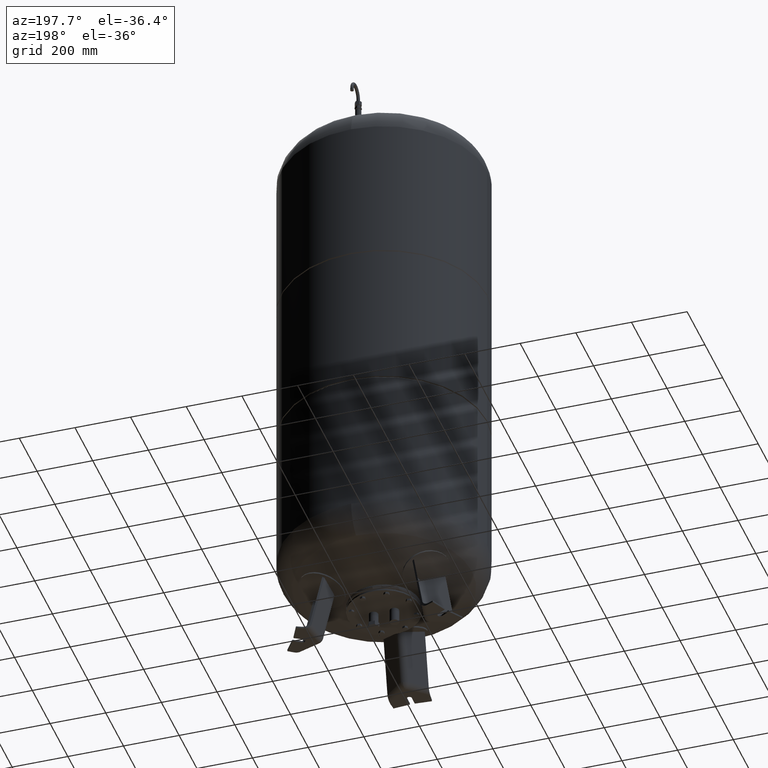
[diagram: clean part render]
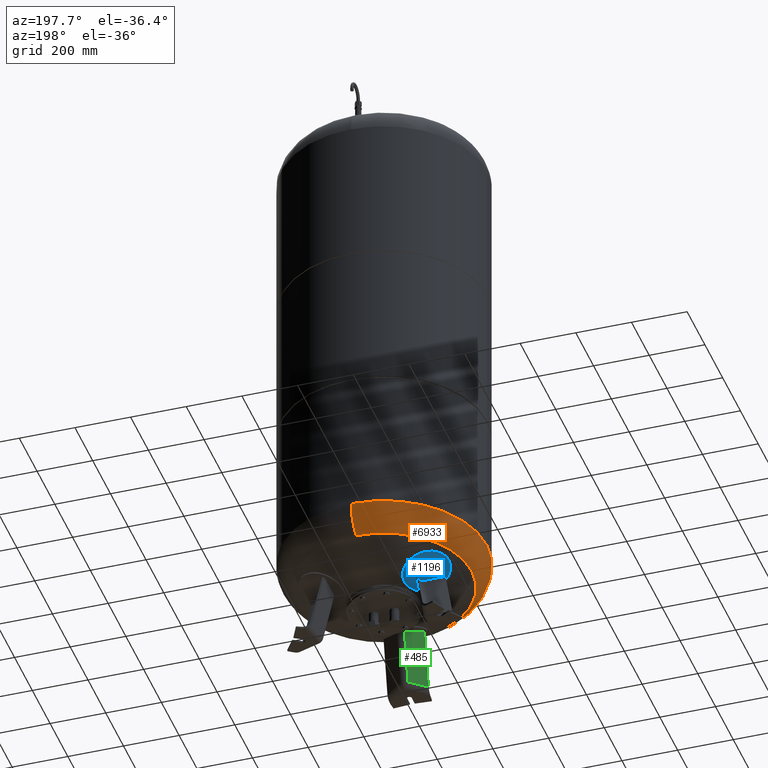
[diagram: same view with three faces highlighted in distinct colors, each labeled with its STEP entity id]
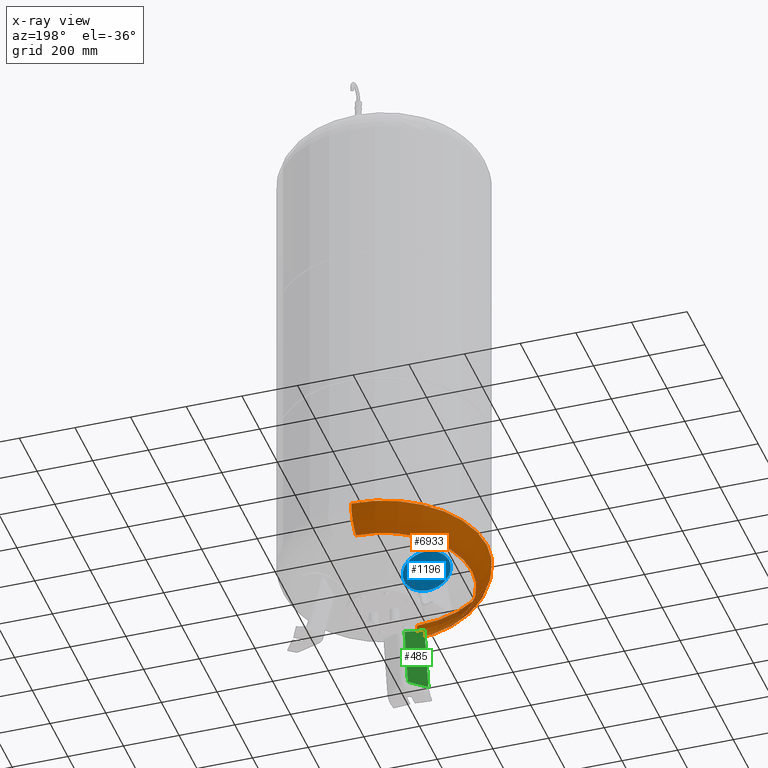
[diagram: x-ray of the same camera — body ghosted, the three highlighted faces saturated]
A machine part, auxiliary view with three faces highlighted in distinct colors.
The next image is the same camera in x-ray (body ghosted, the three faces saturated) — at least one of them is partly hidden behind the body in this view.
Their STEP definitions:

[orange] entity #6933 — the highlighted toroidal blend (fillet) surface has major radius 254.5 mm and minor (blend) radius 115.5 mm.
#6838=CARTESIAN_POINT('',(-370.0,-3.468087E-014,368.793879611869560));
#6839=VERTEX_POINT('',#6838);
#6863=CARTESIAN_POINT('',(-4.531044E-014,369.999999999999940,368.793879611869610));
#6864=VERTEX_POINT('',#6863);
#6872=CARTESIAN_POINT('',(0.0,-3.468087E-014,368.793879611869560));
#6873=DIRECTION('',(0.0,0.0,1.0));
#6874=DIRECTION('',(-1.0,0.0,0.0));
#6875=AXIS2_PLACEMENT_3D('',#6872,#6873,#6874);
#6876=CIRCLE('',#6875,370.0);
#6877=EDGE_CURVE('',#6864,#6839,#6876,.T.);
#6882=CARTESIAN_POINT('',(0.0,-3.468087E-014,368.793879611869560));
#6883=DIRECTION('',(0.0,-1.836970E-016,1.0));
#6884=DIRECTION('',(0.0,-1.0,0.0));
#6885=AXIS2_PLACEMENT_3D('',#6882,#6883,#6884);
#6886=TOROIDAL_SURFACE('',#6885,254.500000000000030,115.500000000000000);
#6887=CARTESIAN_POINT('',(0.0,-370.000000000000060,368.793879611869500));
#6888=VERTEX_POINT('',#6887);
#6889=CARTESIAN_POINT('',(0.0,-315.931034482758610,270.985505725079410));
#6890=VERTEX_POINT('',#6889);
#6891=CARTESIAN_POINT('',(0.0,-254.500000000000060,368.793879611869500));
#6892=DIRECTION('',(1.0,0.0,0.0));
#6893=DIRECTION('',(0.0,-1.0,0.0));
#6894=AXIS2_PLACEMENT_3D('',#6891,#6892,#6893);
#6895=CIRCLE('',#6894,115.500000000000000);
#6896=EDGE_CURVE('',#6888,#6890,#6895,.T.);
#6897=ORIENTED_EDGE('',*,*,#6896,.F.);
#6898=CARTESIAN_POINT('',(0.0,-3.468087E-014,368.793879611869560));
#6899=DIRECTION('',(0.0,0.0,1.0));
#6900=DIRECTION('',(-1.0,0.0,0.0));
#6901=AXIS2_PLACEMENT_3D('',#6898,#6899,#6900);
#6902=CIRCLE('',#6901,370.0);
#6903=EDGE_CURVE('',#6839,#6888,#6902,.T.);
#6904=ORIENTED_EDGE('',*,*,#6903,.F.);
#6905=ORIENTED_EDGE('',*,*,#6877,.F.);
#6906=CARTESIAN_POINT('',(-3.868912E-014,315.931034482758610,270.985505725079630));
#6907=VERTEX_POINT('',#6906);
#6908=CARTESIAN_POINT('',(-3.116623E-014,254.500000000000000,368.793879611869610));
#6909=DIRECTION('',(-1.0,0.0,0.0));
#6910=DIRECTION('',(0.0,1.0,0.0));
#6911=AXIS2_PLACEMENT_3D('',#6908,#6909,#6910);
#6912=CIRCLE('',#6911,115.500000000000000);
#6913=EDGE_CURVE('',#6864,#6907,#6912,.T.);
#6914=ORIENTED_EDGE('',*,*,#6913,.T.);
#6915=CARTESIAN_POINT('',(-315.931034482758610,-1.671377E-014,270.985505725079520));
#6916=VERTEX_POINT('',#6915);
#6917=CARTESIAN_POINT('',(0.0,-1.671377E-014,270.985505725079520));
#6918=DIRECTION('',(0.0,0.0,1.0));
#6919=DIRECTION('',(-1.0,0.0,0.0));
#6920=AXIS2_PLACEMENT_3D('',#6917,#6918,#6919);
#6921=CIRCLE('',#6920,315.931034482758610);
#6922=EDGE_CURVE('',#6907,#6916,#6921,.T.);
#6923=ORIENTED_EDGE('',*,*,#6922,.T.);
#6924=CARTESIAN_POINT('',(0.0,-1.671377E-014,270.985505725079520));
#6925=DIRECTION('',(0.0,0.0,1.0));
#6926=DIRECTION('',(-1.0,0.0,0.0));
#6927=AXIS2_PLACEMENT_3D('',#6924,#6925,#6926);
#6928=CIRCLE('',#6927,315.931034482758610);
#6929=EDGE_CURVE('',#6916,#6890,#6928,.T.);
#6930=ORIENTED_EDGE('',*,*,#6929,.T.);
#6931=EDGE_LOOP('',(#6897,#6904,#6905,#6914,#6923,#6930));
#6932=FACE_OUTER_BOUND('',#6931,.T.);
#6933=ADVANCED_FACE('',(#6932),#6886,.T.);

[blue] entity #1196 — the highlighted spherical surface has radius 594 mm.
#1104=CARTESIAN_POINT('',(-256.769650131147100,148.246026803778080,254.194420566592950));
#1105=VERTEX_POINT('',#1104);
#1114=CARTESIAN_POINT('',(-119.323907941324150,68.891690551515921,193.271869143891880));
#1115=VERTEX_POINT('',#1114);
#1116=CARTESIAN_POINT('',(-188.046779036235620,108.568858677647000,223.733144855242360));
#1117=DIRECTION('',(-0.310355748208370,0.179183974772650,-0.933580426497202));
#1118=DIRECTION('',(-0.808504365822488,0.466790213248601,0.358367949545300));
#1119=AXIS2_PLACEMENT_3D('',#1116,#1117,#1118);
#1120=CIRCLE('',#1119,85.0);
#1121=EDGE_CURVE('',#1115,#1105,#1120,.T.);
#1177=CARTESIAN_POINT('',(-188.046779036235620,108.568858677647000,223.733144855242360));
#1178=DIRECTION('',(-0.310355748208370,0.179183974772650,-0.933580426497202));
#1179=DIRECTION('',(-0.808504365822488,0.466790213248601,0.358367949545300));
#1180=AXIS2_PLACEMENT_3D('',#1177,#1178,#1179);
#1181=CIRCLE('',#1180,85.0);
#1182=EDGE_CURVE('',#1105,#1115,#1181,.T.);
#1187=CARTESIAN_POINT('',(-5.592702223124547,3.228948314852829,772.572841979124180));
#1188=DIRECTION('',(0.500000000000000,0.866025403784439,-1.554724E-016));
#1189=DIRECTION('',(-0.808504365822488,0.466790213248601,0.358367949545300));
#1190=AXIS2_PLACEMENT_3D('',#1187,#1188,#1189);
#1191=SPHERICAL_SURFACE('',#1190,594.0);
#1192=ORIENTED_EDGE('',*,*,#1182,.T.);
#1193=ORIENTED_EDGE('',*,*,#1121,.T.);
#1194=EDGE_LOOP('',(#1192,#1193));
#1195=FACE_OUTER_BOUND('',#1194,.T.);
#1196=ADVANCED_FACE('',(#1195),#1191,.T.);

[green] entity #485 — the highlighted planar face has unit normal (-0.6455, 0.7471, -0.1588).
#402=CARTESIAN_POINT('',(-16.136450826554519,-180.065279163033470,206.419109493446830));
#403=VERTEX_POINT('',#402);
#419=CARTESIAN_POINT('',(-73.499999999999986,-224.586297198034120,230.120878968208760));
#420=VERTEX_POINT('',#419);
#421=CARTESIAN_POINT('',(-73.499999999999986,-224.586297198034120,230.120878968208760));
#422=CARTESIAN_POINT('',(-62.858036945115714,-216.458147537309970,225.106085466333040));
#423=CARTESIAN_POINT('',(-52.229069748678597,-208.270124671794860,220.425795489885990));
#424=CARTESIAN_POINT('',(-35.915460153680982,-195.590355272951830,213.772030183207990));
#425=CARTESIAN_POINT('',(-30.188304126259563,-191.117210884413140,211.538240111227740));
#426=CARTESIAN_POINT('',(-21.696926014053869,-184.449454810698430,208.393982911335310));
#427=CARTESIAN_POINT('',(-18.913416046005391,-182.257954077352710,207.390483448243770));
#428=CARTESIAN_POINT('',(-16.136450826554519,-180.065279163033470,206.419109493446830));
#429=B_SPLINE_CURVE_WITH_KNOTS('',3,(#421,#422,#423,#424,#425,#426,#427,#428),.UNSPECIFIED.,.F.,.U.,(4,2,2,4),(536.762478861198470,540.755951889067660,542.927906845961390,543.990518214376830),.UNSPECIFIED.);
#430=EDGE_CURVE('',#420,#403,#429,.T.);
#455=CARTESIAN_POINT('',(-73.500000000000000,-287.897581157592580,-67.735293817669458));
#456=DIRECTION('',(-0.645458033062181,0.747104967402683,-0.158802063077709));
#457=DIRECTION('',(-1.324933E-016,-0.207911690817760,-0.978147600733806));
#458=AXIS2_PLACEMENT_3D('',#455,#456,#457);
#459=PLANE('',#458);
#460=CARTESIAN_POINT('',(-16.136450826554540,-219.470961811045530,21.029948423057292));
#461=VERTEX_POINT('',#460);
#462=CARTESIAN_POINT('',(-16.136450826554540,-219.470961811045530,21.029948423057292));
#463=DIRECTION('',(1.124687E-016,0.207911690817760,0.978147600733805));
#464=VECTOR('',#463,189.530865210230810);
#465=LINE('',#462,#464);
#466=EDGE_CURVE('',#461,#403,#465,.T.);
#467=ORIENTED_EDGE('',*,*,#466,.F.);
#468=CARTESIAN_POINT('',(-73.500000000000000,-269.029946471096990,21.029948423057292));
#469=VERTEX_POINT('',#468);
#470=CARTESIAN_POINT('',(-73.500000000000000,-269.029946471096990,21.029948423057292));
#471=DIRECTION('',(0.756707249513243,0.653753882232529,0.0));
#472=VECTOR('',#471,75.806792138366546);
#473=LINE('',#470,#472);
#474=EDGE_CURVE('',#469,#461,#473,.T.);
#475=ORIENTED_EDGE('',*,*,#474,.F.);
#476=CARTESIAN_POINT('',(-73.500000000000000,-269.029946471096990,21.029948423057292));
#477=DIRECTION('',(6.647975E-017,0.207911690817760,0.978147600733805));
#478=VECTOR('',#477,213.762146314412720);
#479=LINE('',#476,#478);
#480=EDGE_CURVE('',#469,#420,#479,.T.);
#481=ORIENTED_EDGE('',*,*,#480,.T.);
#482=ORIENTED_EDGE('',*,*,#430,.T.);
#483=EDGE_LOOP('',(#467,#475,#481,#482));
#484=FACE_OUTER_BOUND('',#483,.T.);
#485=ADVANCED_FACE('',(#484),#459,.T.);